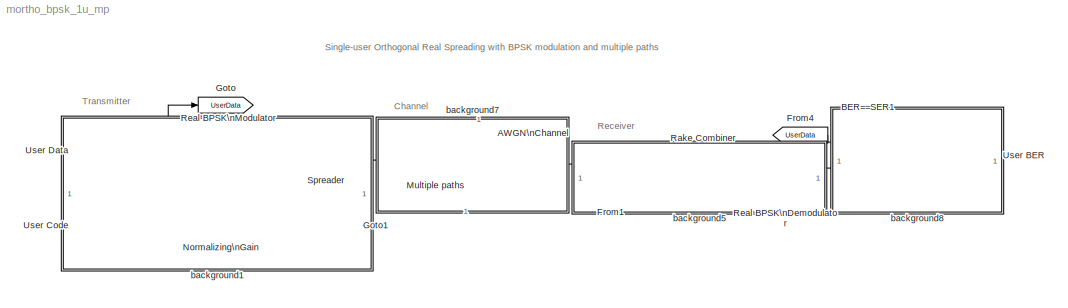
MODEL mortho_bpsk_1u_mp
KIND model
BLOCK [Reference] AWGN\nChannel  REF=commchan2/AWGN\nChannel
  EbNodB = 10
  EsNodB = 25
  Ports = [1, 1]
  Ps = 1
  SNRdB = 5
  ShowPortLabels = on
  SourceBlock = commchan2/AWGN\nChannel
  SourceType = AWGN Channel
  Tsym = ts
  bitsPerSym = 1
  noiseMode = Signal to noise ratio  (SNR)
  seed = 1237
  variance = 1
BLOCK [Reference] BER==SER1  REF=commsink2/Error Rate\nCalculation
  N = 0
  PMode = Port
  Ports = [2, 1]
  RsMode2 = off
  SourceBlock = commsink2/Error Rate\nCalculation
  SourceType = Error Rate Calculation
  WsName = ErrorVec
  cp_mode = Entire frame
  maxBits = 1e6
  numErr = 100
  st_delay = 0
  stop = off
  subframe = []
BLOCK [From] From1
  CloseFcn = tagdialog Close
  GotoTag = UserCode
BLOCK [From] From4
  CloseFcn = tagdialog Close
  GotoTag = UserData
BLOCK [Goto] Goto
  GotoTag = UserData
  TagVisibility = local
BLOCK [Goto] Goto1
  GotoTag = UserCode
  TagVisibility = local
BLOCK [Reference] Multiple paths  REF=mspread/Multiple paths  (lib defined in mdl_3dcc25b7f51f)
  Ports = [1, 1]
  ShowPortLabels = on
  SourceBlock = mspread/Multiple paths
  SourceType = Multiple Paths
  p = 3
  pd = [0 3 5]
  ts = 1/19200
BLOCK [Gain] Normalizing\nGain
  Gain = 1/sqrt(64)
BLOCK [Reference] Rake Combiner  REF=mspread/Rake Combiner  (lib defined in mdl_3dcc25b7f51f)
  Ports = [2, 1]
  ShowPortLabels = on
  SourceBlock = mspread/Rake Combiner
  SourceType = Rake combiner
  pd = [0 3 5]
  pgain = 64
BLOCK [Reference] Real BPSK\nDemodulator  REF=mspread/Real BPSK\nDemodulator  (lib defined in mdl_3dcc25b7f51f)
  Ports = [1, 1]
  ShowPortLabels = on
  SourceBlock = mspread/Real BPSK\nDemodulator
  SourceType = Real BPSK Demodulator
BLOCK [Reference] Real BPSK\nModulator  REF=mspread/Real BPSK\nModulator  (lib defined in mdl_3dcc25b7f51f)
  Ports = [1, 1]
  ShowPortLabels = on
  SourceBlock = mspread/Real BPSK\nModulator
  SourceType = Real BPSK Modulator
BLOCK [Product] Spreader
  Ports = [2, 1]
  RndMeth = Floor
BLOCK [Display] User BER
  Decimation = 1
  Ports = [1]
BLOCK [Reference] User Code  REF=commseqgen2/Hadamard\nCode Generator
  Ports = [0, 1]
  ShowPortLabels = on
  SourceBlock = commseqgen2/Hadamard\nCode Generator
  SourceType = Hadamard Code Generator
  frameBased = on
  index = 30
  length = 64
  sampPerFrame = 64
  ts = 1/(19200*64)
BLOCK [Reference] User Data  REF=commrandsrc2/Random Integer\nGenerator
  Ports = [0, 1]
  ShowPortLabels = on
  SourceBlock = commrandsrc2/Random Integer\nGenerator
  SourceType = Random Integer Generator
  Ts = 1/19200
  frameBased = on
  mul = 2
  orient = off
  sampPerFrame = 1
  seed = 631
BLOCK [SubSystem] background1
  MaskDisplay = disp('')
  MaskIconFrame = on
  MaskIconOpaque = on
  MaskIconRotate = none
  MaskIconUnits = autoscale
  Ports = []
  TreatAsAtomicUnit = off
BLOCK [SubSystem] background5
  MaskDisplay = disp('')
  MaskIconFrame = on
  MaskIconOpaque = on
  MaskIconRotate = none
  MaskIconUnits = autoscale
  Ports = []
  TreatAsAtomicUnit = off
BLOCK [SubSystem] background7
  MaskDisplay = disp('')
  MaskIconFrame = on
  MaskIconOpaque = on
  MaskIconRotate = none
  MaskIconUnits = autoscale
  Ports = []
  TreatAsAtomicUnit = off
BLOCK [SubSystem] background8
  MaskDisplay = disp('')
  MaskIconFrame = on
  MaskIconOpaque = on
  MaskIconRotate = none
  MaskIconUnits = autoscale
  Ports = []
  TreatAsAtomicUnit = off
ANNOTATION (root): Channel
ANNOTATION (root): Receiver
ANNOTATION (root): Single-user Orthogonal Real Spreading with BPSK modulation and multiple paths
ANNOTATION (root): Transmitter
LINE AWGN\nChannel:1 -> Rake Combiner:1
LINE BER==SER1:1 -> User BER:1
LINE From1:1 -> Rake Combiner:2
LINE From4:1 -> BER==SER1:1
LINE Multiple paths:1 -> AWGN\nChannel:1
NET Normalizing\nGain:1 -> Goto1:1, Spreader:2
LINE Rake Combiner:1 -> Real BPSK\nDemodulator:1
LINE Real BPSK\nDemodulator:1 -> BER==SER1:2
LINE Real BPSK\nModulator:1 -> Spreader:1
LINE Spreader:1 -> Multiple paths:1
LINE User Code:1 -> Normalizing\nGain:1
NET User Data:1 -> Goto:1, Real BPSK\nModulator:1
note: NET lines group one-source signal fan-out (src -> all destinations, sorted); 1:1 wires keep LINE
